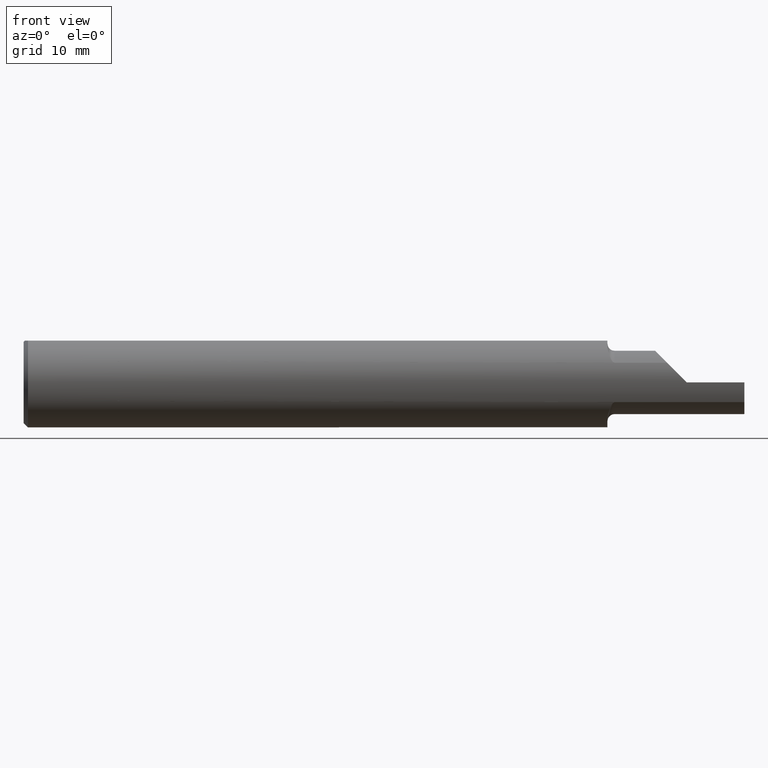
[diagram: clean part render]
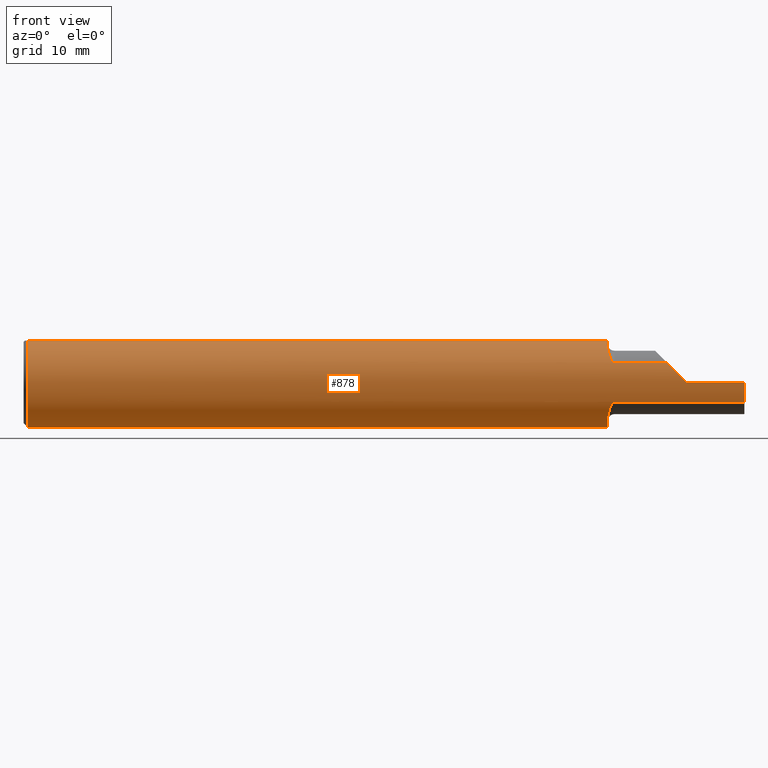
[diagram: same view with one face highlighted and labeled with its STEP entity id]
A machine part, front view. The second image highlights one B-rep face of the part: STEP entity #878.
In plain terms, the highlighted cylindrical surface (partial cylindrical patch) has radius 3.9649 mm, axis along (-1, -0, -0).
Its self-contained STEP definition (entity closure, byte-faithful):
#4 = ORIENTED_EDGE ( 'NONE', *, *, #199, .F. ) ;
#7 = CARTESIAN_POINT ( 'NONE',  ( 2.300000000000000266, -0.1560999999999999888, -3.918740332231607202E-17 ) ) ;
#12 = CARTESIAN_POINT ( 'NONE',  ( 0.01499999999999970281, 0.05756040305626777126, 0.1450999999999999790 ) ) ;
#27 = EDGE_CURVE ( 'NONE', #346, #509, #370, .T. ) ;
#28 = CARTESIAN_POINT ( 'NONE',  ( 0.01499999999999970281, 0.000000000000000000, 0.000000000000000000 ) ) ;
#30 = CARTESIAN_POINT ( 'NONE',  ( 2.049999999999999822, -0.1404253234750461321, -0.06817579135535316304 ) ) ;
#32 = DIRECTION ( 'NONE',  ( 0.000000000000000000, 0.000000000000000000, -1.000000000000000000 ) ) ;
#35 = AXIS2_PLACEMENT_3D ( 'NONE', #565, #220, #149 ) ;
#51 = VERTEX_POINT ( 'NONE', #888 ) ;
#56 = ORIENTED_EDGE ( 'NONE', *, *, #27, .T. ) ;
#57 = EDGE_CURVE ( 'NONE', #320, #712, #261, .T. ) ;
#59 = AXIS2_PLACEMENT_3D ( 'NONE', #235, #528, #440 ) ;
#61 = DIRECTION ( 'NONE',  ( 0.000000000000000000, 0.000000000000000000, -1.000000000000000000 ) ) ;
#73 = EDGE_CURVE ( 'NONE', #650, #847, #818, .T. ) ;
#82 = CARTESIAN_POINT ( 'NONE',  ( 2.031403200130683651, -0.1234706953780182193, -0.09581413073336600417 ) ) ;
#89 = CARTESIAN_POINT ( 'NONE',  ( 2.048017170444489388, -0.1404253234750461876, -0.06817579135535316304 ) ) ;
#97 = CARTESIAN_POINT ( 'NONE',  ( 2.500000000000000000, -0.1560999999999999888, -3.918740332231607202E-17 ) ) ;
#104 = CARTESIAN_POINT ( 'NONE',  ( 2.229999999999999982, -0.1404253234750461321, -0.06817579135535316304 ) ) ;
#120 = CARTESIAN_POINT ( 'NONE',  ( 2.025408103372245527, -0.09658968664339810661, 0.1228705714355937950 ) ) ;
#149 = DIRECTION ( 'NONE',  ( 0.000000000000000000, 0.000000000000000000, -1.000000000000000000 ) ) ;
#150 = ORIENTED_EDGE ( 'NONE', *, *, #249, .F. ) ;
#156 = CARTESIAN_POINT ( 'NONE',  ( 2.037623797854640539, -0.1338035519503443793, -0.08048043396403946337 ) ) ;
#157 = CIRCLE ( 'NONE', #35, 0.1560999999999999888 ) ;
#158 = ORIENTED_EDGE ( 'NONE', *, *, #179, .F. ) ;
#161 = CARTESIAN_POINT ( 'NONE',  ( 2.500000000000000000, -0.05756040305626777126, 0.1450999999999999790 ) ) ;
#162 = CARTESIAN_POINT ( 'NONE',  ( 2.046255291801899912, -0.1399378351544087185, -0.06918406497295909174 ) ) ;
#166 = CARTESIAN_POINT ( 'NONE',  ( 2.024999999999999911, -0.08381719038816995426, -0.1316886046529207599 ) ) ;
#170 = AXIS2_PLACEMENT_3D ( 'NONE', #28, #385, #32 ) ;
#175 = CARTESIAN_POINT ( 'NONE',  ( 2.028193910147385370, -0.1136745389711200649, 0.1072484500910515781 ) ) ;
#179 = EDGE_CURVE ( 'NONE', #587, #712, #519, .T. ) ;
#185 = CARTESIAN_POINT ( 'NONE',  ( 2.033416808568586198, -0.1279360967279929984, 0.08973580099040201485 ) ) ;
#199 = EDGE_CURVE ( 'NONE', #471, #429, #431, .T. ) ;
#214 = CARTESIAN_POINT ( 'NONE',  ( 2.039206631919841861, -0.1356135290907077573, -0.07737645377574914329 ) ) ;
#217 = VECTOR ( 'NONE', #497, 39.37007874015748143 ) ;
#220 = DIRECTION ( 'NONE',  ( 1.000000000000000000, -0.000000000000000000, -0.000000000000000000 ) ) ;
#235 = CARTESIAN_POINT ( 'NONE',  ( 2.500000000000000000, 0.000000000000000000, 0.000000000000000000 ) ) ;
#236 = CARTESIAN_POINT ( 'NONE',  ( 2.048004332278162920, -0.1404253234750461321, 0.06817579135535317691 ) ) ;
#242 = ORIENTED_EDGE ( 'NONE', *, *, #488, .T. ) ;
#249 = EDGE_CURVE ( 'NONE', #504, #857, #331, .T. ) ;
#250 = CYLINDRICAL_SURFACE ( 'NONE', #362, 0.1560999999999999888 ) ;
#251 = CARTESIAN_POINT ( 'NONE',  ( 2.231824208644646479, -0.1404253234750460488, 0.06817579135535328794 ) ) ;
#252 = DIRECTION ( 'NONE',  ( 1.000000000000000000, 0.000000000000000000, 0.000000000000000000 ) ) ;
#254 = CARTESIAN_POINT ( 'NONE',  ( 0.01499999999999970281, 0.000000000000000000, -0.1560999999999999888 ) ) ;
#261 = LINE ( 'NONE', #824, #615 ) ;
#265 = CARTESIAN_POINT ( 'NONE',  ( 2.229999999999999982, -0.1404253234750461321, 0.06817579135535316304 ) ) ;
#278 = CARTESIAN_POINT ( 'NONE',  ( 2.500000000000000000, -0.1404253234750461043, -0.06817579135535321855 ) ) ;
#286 = CARTESIAN_POINT ( 'NONE',  ( 2.024999999999999911, 0.05756040305626777126, 0.1450999999999999790 ) ) ;
#311 = CARTESIAN_POINT ( 'NONE',  ( 2.049999999999999822, -0.1404253234750461321, 0.06817579135535316304 ) ) ;
#320 = VERTEX_POINT ( 'NONE', #12 ) ;
#323 = EDGE_CURVE ( 'NONE', #587, #847, #486, .T. ) ;
#331 = LINE ( 'NONE', #265, #764 ) ;
#335 = CARTESIAN_POINT ( 'NONE',  ( 2.024999999999999911, 0.000000000000000000, 0.000000000000000000 ) ) ;
#339 = DIRECTION ( 'NONE',  ( 0.000000000000000000, 0.000000000000000000, -1.000000000000000000 ) ) ;
#346 = VERTEX_POINT ( 'NONE', #778 ) ;
#362 = AXIS2_PLACEMENT_3D ( 'NONE', #820, #799, #731 ) ;
#370 = CIRCLE ( 'NONE', #170, 0.1560999999999999888 ) ;
#380 = EDGE_CURVE ( 'NONE', #509, #320, #157, .T. ) ;
#384 = CARTESIAN_POINT ( 'NONE',  ( 2.043392435750742475, -0.1386997847853259358, 0.07163397791871660425 ) ) ;
#385 = DIRECTION ( 'NONE',  ( 1.000000000000000000, -0.000000000000000000, -0.000000000000000000 ) ) ;
#389 = FACE_OUTER_BOUND ( 'NONE', #873, .T. ) ;
#390 = CARTESIAN_POINT ( 'NONE',  ( 2.046217203179353294, -0.1399260202903903350, 0.06920813490947569369 ) ) ;
#396 = CARTESIAN_POINT ( 'NONE',  ( 2.024999999999999911, -0.09039521068908672186, 0.1275018249281880678 ) ) ;
#398 = ORIENTED_EDGE ( 'NONE', *, *, #380, .T. ) ;
#412 = CARTESIAN_POINT ( 'NONE',  ( 2.024999999999999911, -0.08381719038816995426, -0.1316886046529207599 ) ) ;
#423 = CARTESIAN_POINT ( 'NONE',  ( 2.033423283070733500, -0.1279513233426676500, -0.08971505958942783965 ) ) ;
#429 = VERTEX_POINT ( 'NONE', #498 ) ;
#431 = CIRCLE ( 'NONE', #521, 0.1560999999999999888 ) ;
#440 = DIRECTION ( 'NONE',  ( 0.000000000000000000, 0.000000000000000000, -1.000000000000000000 ) ) ;
#441 = CARTESIAN_POINT ( 'NONE',  ( 2.049999999999999822, -0.1404253234750461321, -0.06817579135535316304 ) ) ;
#457 = LINE ( 'NONE', #97, #779 ) ;
#462 = CARTESIAN_POINT ( 'NONE',  ( 2.031414747612839466, -0.1234875550582431591, 0.09578598333246278462 ) ) ;
#471 = VERTEX_POINT ( 'NONE', #816 ) ;
#483 = CARTESIAN_POINT ( 'NONE',  ( 2.024999999999999911, 0.000000000000000000, 0.000000000000000000 ) ) ;
#486 = B_SPLINE_CURVE_WITH_KNOTS ( 'NONE', 3,
 ( #166, #855, #508, #82, #423, #156, #214, #573, #850, #162, #89, #441 ),
 .UNSPECIFIED., .F., .F.,
 ( 4, 2, 2, 2, 2, 4 ),
 ( 0.000000000000000000, 0.001172760684278195426, 0.001759141026417290971, 0.002052331197486834732, 0.002198926283021600866, 0.002345521368556366566 ),
 .UNSPECIFIED. ) ;
#488 = EDGE_CURVE ( 'NONE', #784, #857, #537, .T. ) ;
#497 = DIRECTION ( 'NONE',  ( -1.000000000000000000, -0.000000000000000000, -0.000000000000000000 ) ) ;
#498 = CARTESIAN_POINT ( 'NONE',  ( 2.024999999999999911, -0.08381719038816995426, 0.1316886046529207599 ) ) ;
#504 = VERTEX_POINT ( 'NONE', #891 ) ;
#508 = CARTESIAN_POINT ( 'NONE',  ( 2.026534083241760431, -0.1085804411166635813, -0.1131817073037792026 ) ) ;
#509 = VERTEX_POINT ( 'NONE', #254 ) ;
#512 = EDGE_CURVE ( 'NONE', #504, #429, #806, .T. ) ;
#519 = CIRCLE ( 'NONE', #643, 0.1560999999999999888 ) ;
#521 = AXIS2_PLACEMENT_3D ( 'NONE', #483, #702, #61 ) ;
#522 = ORIENTED_EDGE ( 'NONE', *, *, #781, .T. ) ;
#528 = DIRECTION ( 'NONE',  ( 1.000000000000000000, 0.000000000000000000, 0.000000000000000000 ) ) ;
#533 = CARTESIAN_POINT ( 'NONE',  ( 2.039166370965442177, -0.1355737491029501418, 0.07744673639403797105 ) ) ;
#537 =( BOUNDED_CURVE ( )  B_SPLINE_CURVE ( 3, ( #672, #609, #804, #251 ),
 .UNSPECIFIED., .F., .F. ) 
 B_SPLINE_CURVE_WITH_KNOTS ( ( 4, 4 ),
 ( 4.712388980384687898, 5.164365393897303314 ),
 .UNSPECIFIED. ) 
 CURVE ( )  GEOMETRIC_REPRESENTATION_ITEM ( )  RATIONAL_B_SPLINE_CURVE ( ( 1.000000000000000000, 0.9830487706143840043, 0.9830487706143840043, 1.000000000000000000 ) ) 
 REPRESENTATION_ITEM ( '' )  );
#564 = LINE ( 'NONE', #161, #217 ) ;
#565 = CARTESIAN_POINT ( 'NONE',  ( 0.01499999999999970281, 0.000000000000000000, 0.000000000000000000 ) ) ;
#573 = CARTESIAN_POINT ( 'NONE',  ( 2.042279478956144256, -0.1379798729808596747, -0.07301711011826303444 ) ) ;
#587 = VERTEX_POINT ( 'NONE', #412 ) ;
#609 = CARTESIAN_POINT ( 'NONE',  ( 2.276279741160605941, -0.1561000000000000165, 0.02372025883939345506 ) ) ;
#615 = VECTOR ( 'NONE', #252, 39.37007874015748143 ) ;
#643 = AXIS2_PLACEMENT_3D ( 'NONE', #335, #695, #339 ) ;
#650 = VERTEX_POINT ( 'NONE', #278 ) ;
#669 = ORIENTED_EDGE ( 'NONE', *, *, #917, .T. ) ;
#672 = CARTESIAN_POINT ( 'NONE',  ( 2.300000000000000266, -0.1560999999999999888, -3.918740332231607202E-17 ) ) ;
#677 = DIRECTION ( 'NONE',  ( -1.000000000000000000, -0.000000000000000000, -0.000000000000000000 ) ) ;
#695 = DIRECTION ( 'NONE',  ( 1.000000000000000000, 0.000000000000000000, 0.000000000000000000 ) ) ;
#702 = DIRECTION ( 'NONE',  ( 1.000000000000000000, 0.000000000000000000, 0.000000000000000000 ) ) ;
#712 = VERTEX_POINT ( 'NONE', #286 ) ;
#731 = DIRECTION ( 'NONE',  ( 0.000000000000000000, 0.000000000000000000, 1.000000000000000000 ) ) ;
#737 = CARTESIAN_POINT ( 'NONE',  ( 2.024999999999999911, -0.08381719038816995426, 0.1316886046529207599 ) ) ;
#740 = CARTESIAN_POINT ( 'NONE',  ( 2.231824208644646479, -0.1404253234750460488, 0.06817579135535328794 ) ) ;
#743 = DIRECTION ( 'NONE',  ( -1.000000000000000000, -0.000000000000000000, -0.000000000000000000 ) ) ;
#752 = CARTESIAN_POINT ( 'NONE',  ( 2.027003144326046336, -0.1082360171314162151, 0.1127462171707191707 ) ) ;
#764 = VECTOR ( 'NONE', #767, 39.37007874015748143 ) ;
#767 = DIRECTION ( 'NONE',  ( 1.000000000000000000, 0.000000000000000000, 0.000000000000000000 ) ) ;
#768 = ORIENTED_EDGE ( 'NONE', *, *, #512, .T. ) ;
#778 = CARTESIAN_POINT ( 'NONE',  ( 0.01499999999999970107, -0.05756040305626777126, 0.1450999999999999790 ) ) ;
#779 = VECTOR ( 'NONE', #677, 39.37007874015748143 ) ;
#781 = EDGE_CURVE ( 'NONE', #471, #346, #564, .T. ) ;
#784 = VERTEX_POINT ( 'NONE', #7 ) ;
#799 = DIRECTION ( 'NONE',  ( -1.000000000000000000, -0.000000000000000000, -0.000000000000000000 ) ) ;
#800 = CARTESIAN_POINT ( 'NONE',  ( 2.037605359673460459, -0.1337809426577717675, 0.08051774082737317428 ) ) ;
#804 = CARTESIAN_POINT ( 'NONE',  ( 2.253162613644221768, -0.1507850122484572508, 0.04683738635577809617 ) ) ;
#806 = B_SPLINE_CURVE_WITH_KNOTS ( 'NONE', 3,
 ( #311, #236, #390, #384, #822, #533, #800, #185, #462, #175, #752, #120, #396, #737 ),
 .UNSPECIFIED., .F., .F.,
 ( 4, 2, 2, 2, 2, 2, 4 ),
 ( 0.000000000000000000, 0.0001496528642217778910, 0.0002993057284435557820, 0.0005986114568871121061, 0.001197222913774225080, 0.001795834370661338053, 0.002394445827548450593 ),
 .UNSPECIFIED. ) ;
#816 = CARTESIAN_POINT ( 'NONE',  ( 2.024999999999999911, -0.05756040305626777820, 0.1450999999999999790 ) ) ;
#818 = LINE ( 'NONE', #104, #852 ) ;
#820 = CARTESIAN_POINT ( 'NONE',  ( 2.500000000000000000, 0.000000000000000000, 0.000000000000000000 ) ) ;
#822 = CARTESIAN_POINT ( 'NONE',  ( 2.042237837478428464, -0.1379520625079433405, 0.07306979920448572474 ) ) ;
#824 = CARTESIAN_POINT ( 'NONE',  ( 2.500000000000000000, 0.05756040305626777126, 0.1450999999999999790 ) ) ;
#847 = VERTEX_POINT ( 'NONE', #30 ) ;
#850 = CARTESIAN_POINT ( 'NONE',  ( 2.043429166325215984, -0.1387203257045916405, -0.07159402063229236557 ) ) ;
#852 = VECTOR ( 'NONE', #743, 39.37007874015748143 ) ;
#855 = CARTESIAN_POINT ( 'NONE',  ( 2.025000000000000799, -0.09698794191859318181, -0.1233056819885771371 ) ) ;
#857 = VERTEX_POINT ( 'NONE', #740 ) ;
#871 = ORIENTED_EDGE ( 'NONE', *, *, #323, .T. ) ;
#873 = EDGE_LOOP ( 'NONE', ( #890, #916, #669, #242, #150, #768, #4, #522, #56, #398, #906, #158, #871 ) ) ;
#878 = ADVANCED_FACE ( 'NONE', ( #389 ), #250, .T. ) ;
#888 = CARTESIAN_POINT ( 'NONE',  ( 2.500000000000000000, -0.1561000000000000165, -3.918740332231607202E-17 ) ) ;
#890 = ORIENTED_EDGE ( 'NONE', *, *, #73, .F. ) ;
#891 = CARTESIAN_POINT ( 'NONE',  ( 2.049999999999999822, -0.1404253234750461321, 0.06817579135535316304 ) ) ;
#899 = CIRCLE ( 'NONE', #59, 0.1560999999999999888 ) ;
#906 = ORIENTED_EDGE ( 'NONE', *, *, #57, .T. ) ;
#907 = EDGE_CURVE ( 'NONE', #51, #650, #899, .T. ) ;
#916 = ORIENTED_EDGE ( 'NONE', *, *, #907, .F. ) ;
#917 = EDGE_CURVE ( 'NONE', #51, #784, #457, .T. ) ;